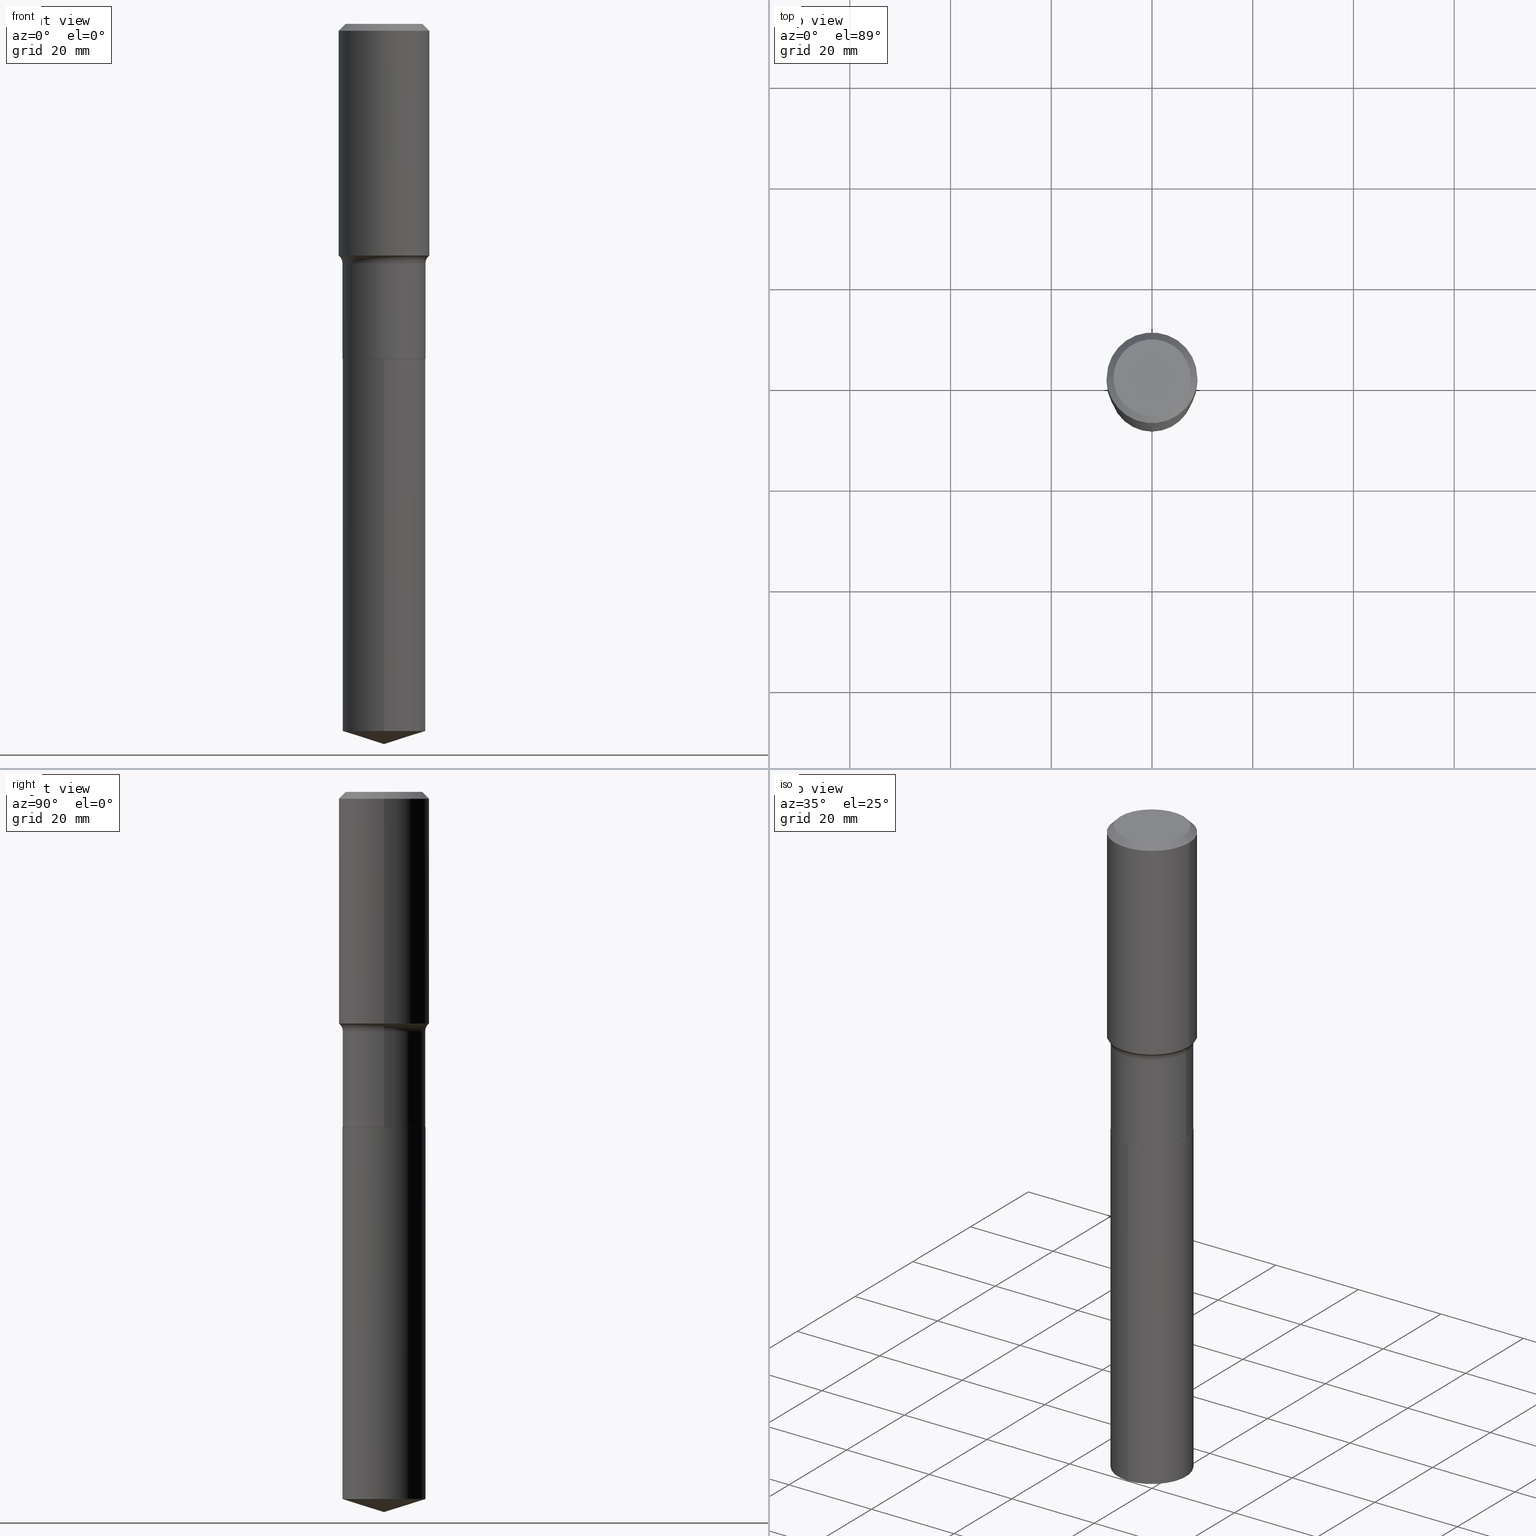
[diagram: canonical four-view strip — front | top / right | iso, engineering-drawing reading convention]
A machine part, canonical four-view strip (front | top / right | iso — engineering-drawing reading convention). The complete STEP part file that produces these views, byte-faithful:
ISO-10303-21;
HEADER;
FILE_DESCRIPTION (( 'STEP AP203' ),
    '1' );
FILE_NAME ('64205.STEP',
    '2024-04-19T15:36:36',
    ( '' ),
    ( '' ),
    'SwSTEP 2.0',
    'SolidWorks 2023',
    '' );
FILE_SCHEMA (( 'CONFIG_CONTROL_DESIGN' ));
ENDSEC;

DATA;
#1 = ORIENTED_EDGE ( 'NONE', *, *, #176, .T. ) ;
#2 = CYLINDRICAL_SURFACE ( 'NONE', #80, 0.3247999999999999776 ) ;
#3 = CIRCLE ( 'NONE', #343, 0.3247999999999999776 ) ;
#4 = ADVANCED_FACE ( 'NONE', ( #23 ), #302, .F. ) ;
#5 = DIRECTION ( 'NONE',  ( -2.445468806185136597E-29, 3.491481338843145583E-15, 1.000000000000000000 ) ) ;
#6 = DIMENSIONAL_EXPONENTS ( 1.000000000000000000, 0.000000000000000000, 0.000000000000000000, 0.000000000000000000, 0.000000000000000000, 0.000000000000000000, 0.000000000000000000 ) ;
#7 = EDGE_CURVE ( 'NONE', #323, #155, #291, .T. ) ;
#8 = CARTESIAN_POINT ( 'NONE',  ( -0.3543499999999999983, 2.288831862975266823E-15, -0.05315250000000039388 ) ) ;
#9 = ORIENTED_EDGE ( 'NONE', *, *, #357, .F. ) ;
#10 = CALENDAR_DATE ( 2024, 19, 4 ) ;
#11 = PRODUCT ( '64205', '64205', '', ( #402 ) ) ;
#12 = VERTEX_POINT ( 'NONE', #405 ) ;
#13 = AXIS2_PLACEMENT_3D ( 'NONE', #449, #324, #241 ) ;
#14 = CC_DESIGN_APPROVAL ( #56, ( #136 ) ) ;
#15 = DIRECTION ( 'NONE',  ( -6.982962677686265922E-15, -1.000000000000000000, 3.364344819783575691E-15 ) ) ;
#16 = DIRECTION ( 'NONE',  ( 1.000000000000000000, -6.982962677686265922E-15, 4.876176775795934672E-29 ) ) ;
#17 = VERTEX_POINT ( 'NONE', #468 ) ;
#18 = LINE ( 'NONE', #156, #93 ) ;
#19 = CARTESIAN_POINT ( 'NONE',  ( 0.000000000000000000, 0.000000000000000000, 0.000000000000000000 ) ) ;
#20 = VERTEX_POINT ( 'NONE', #84 ) ;
#21 = DIRECTION ( 'NONE',  ( -2.445569451297734298E-29, 3.491337209313541680E-15, 1.000000000000000000 ) ) ;
#22 = CIRCLE ( 'NONE', #161, 0.3247999999999999776 ) ;
#23 = FACE_OUTER_BOUND ( 'NONE', #92, .T. ) ;
#24 = CARTESIAN_POINT ( 'NONE',  ( 6.402481881473307615E-29, -9.141047293225240652E-15, -2.618100000000000094 ) ) ;
#25 = CARTESIAN_POINT ( 'NONE',  ( 0.000000000000000000, 0.000000000000000000, 0.000000000000000000 ) ) ;
#26 = EDGE_LOOP ( 'NONE', ( #346, #157, #426, #338 ) ) ;
#27 = DIRECTION ( 'NONE',  ( 1.000000000000000000, -6.982962677686266711E-15, 4.883557194083112901E-29 ) ) ;
#28 = VERTEX_POINT ( 'NONE', #228 ) ;
#29 = COORDINATED_UNIVERSAL_TIME_OFFSET ( 5, 0, .BEHIND. ) ;
#30 = CIRCLE ( 'NONE', #172, 0.3011975000000000069 ) ;
#31 = CARTESIAN_POINT ( 'NONE',  ( -2.268066277712363794E-15, -0.3248000000000192955, -5.527490953372105054 ) ) ;
#32 = ORIENTED_EDGE ( 'NONE', *, *, #49, .F. ) ;
#33 = FACE_OUTER_BOUND ( 'NONE', #411, .T. ) ;
#34 = CARTESIAN_POINT ( 'NONE',  ( -0.3543500000000002759, -3.801676273909247311E-15, -1.809972285336354902 ) ) ;
#35 = CONICAL_SURFACE ( 'NONE', #401, 124.8659371009137260, 1.265363707695888573 ) ;
#36 = DIRECTION ( 'NONE',  ( 2.438088387897960049E-29, -3.491481338843145188E-15, -1.000000000000000000 ) ) ;
#37 = VECTOR ( 'NONE', #116, 39.37007874015748854 ) ;
#38 = CC_DESIGN_SECURITY_CLASSIFICATION ( #451, ( #195 ) ) ;
#39 = CARTESIAN_POINT ( 'NONE',  ( 6.402481881473305372E-29, -9.141047293225237496E-15, -2.618099999999999650 ) ) ;
#40 = CARTESIAN_POINT ( 'NONE',  ( -0.3543500000000001648, 2.517808184165916180E-15, -1.743024649231826627E-29 ) ) ;
#41 = DIRECTION ( 'NONE',  ( -2.445569451297734017E-29, 3.491337209313541680E-15, 1.000000000000000000 ) ) ;
#42 = AXIS2_PLACEMENT_3D ( 'NONE', #410, #207, #174 ) ;
#43 = ADVANCED_FACE ( 'NONE', ( #83 ), #232, .T. ) ;
#44 = CARTESIAN_POINT ( 'NONE',  ( 2.307842805748940929E-15, 0.3247999999999908183, -2.618100000000001426 ) ) ;
#45 = MANIFOLD_SOLID_BREP ( 'Body-Move/Copy2[1]', #342 ) ;
#46 = CARTESIAN_POINT ( 'NONE',  ( 6.402481881473305372E-29, -9.141047293225237496E-15, -2.618099999999999650 ) ) ;
#47 = EDGE_CURVE ( 'NONE', #17, #20, #431, .T. ) ;
#48 = DIRECTION ( 'NONE',  ( -6.982962677686265922E-15, -1.000000000000000000, 3.364344819783575691E-15 ) ) ;
#49 = EDGE_CURVE ( 'NONE', #155, #323, #325, .T. ) ;
#50 = DIRECTION ( 'NONE',  ( 1.000000000000000000, -6.982962677686266711E-15, 4.883557194083112901E-29 ) ) ;
#51 = AXIS2_PLACEMENT_3D ( 'NONE', #271, #472, #353 ) ;
#52 = VECTOR ( 'NONE', #262, 39.37007874015748143 ) ;
#53 = CARTESIAN_POINT ( 'NONE',  ( 0.000000000000000000, 0.000000000000000000, 0.000000000000000000 ) ) ;
#54 = ORIENTED_EDGE ( 'NONE', *, *, #485, .F. ) ;
#55 = DIRECTION ( 'NONE',  ( -2.445468806185136597E-29, 3.491481338843145583E-15, 1.000000000000000000 ) ) ;
#56 = APPROVAL ( #198, 'UNSPECIFIED' ) ;
#57 = DIRECTION ( 'NONE',  ( 1.000000000000000000, 0.000000000000000000, 0.000000000000000000 ) ) ;
#58 = CARTESIAN_POINT ( 'NONE',  ( 0.3247999999999999221, -8.800977010821908091E-15, -1.871100000000000207 ) ) ;
#59 = AXIS2_PLACEMENT_3D ( 'NONE', #25, #360, #281 ) ;
#60 =( GEOMETRIC_REPRESENTATION_CONTEXT ( 3 ) GLOBAL_UNCERTAINTY_ASSIGNED_CONTEXT ( ( #318 ) ) GLOBAL_UNIT_ASSIGNED_CONTEXT ( ( #349, #88, #355 ) ) REPRESENTATION_CONTEXT ( 'NONE', 'WORKASPACE' ) );
#61 = ORIENTED_EDGE ( 'NONE', *, *, #269, .F. ) ;
#62 = DATE_TIME_ROLE ( 'classification_date' ) ;
#63 = CARTESIAN_POINT ( 'NONE',  ( 0.3543500000000001648, -2.474412824838129483E-15, 1.727873240503290590E-29 ) ) ;
#64 = APPLICATION_CONTEXT ( 'configuration controlled 3d designs of mechanical parts and assemblies' ) ;
#65 = LINE ( 'NONE', #70, #127 ) ;
#66 = ORIENTED_EDGE ( 'NONE', *, *, #331, .F. ) ;
#67 = CARTESIAN_POINT ( 'NONE',  ( 0.3543499999999999983, -2.659993786700990565E-15, -0.05315250000000039388 ) ) ;
#68 = LINE ( 'NONE', #332, #249 ) ;
#69 = EDGE_CURVE ( 'NONE', #101, #20, #186, .T. ) ;
#70 = CARTESIAN_POINT ( 'NONE',  ( 0.3543499999999999983, -2.616598427373204262E-15, -0.05315250000000039388 ) ) ;
#71 = EDGE_LOOP ( 'NONE', ( #268, #250, #166, #134 ) ) ;
#72 = AXIS2_PLACEMENT_3D ( 'NONE', #327, #213, #418 ) ;
#73 = DIRECTION ( 'NONE',  ( -2.445468806185136597E-29, 3.491481338843145583E-15, 1.000000000000000000 ) ) ;
#74 = AXIS2_PLACEMENT_3D ( 'NONE', #229, #470, #48 ) ;
#75 = DIRECTION ( 'NONE',  ( -2.445468806185136597E-29, 3.491481338843145583E-15, 1.000000000000000000 ) ) ;
#76 = ORIENTED_EDGE ( 'NONE', *, *, #253, .T. ) ;
#77 = LINE ( 'NONE', #8, #147 ) ;
#78 = EDGE_CURVE ( 'NONE', #479, #155, #18, .T. ) ;
#79 = DIRECTION ( 'NONE',  ( 7.105427357601001859E-15, 1.000000000000000000, -3.491481338843145583E-15 ) ) ;
#80 = AXIS2_PLACEMENT_3D ( 'NONE', #459, #491, #261 ) ;
#81 = PLANE ( 'NONE',  #384 ) ;
#82 = APPROVAL_ROLE ( '' ) ;
#83 = FACE_OUTER_BOUND ( 'NONE', #208, .T. ) ;
#84 = CARTESIAN_POINT ( 'NONE',  ( -0.3247999999999999221, -5.528263337083809819E-15, -1.871100000000000207 ) ) ;
#85 = AXIS2_PLACEMENT_3D ( 'NONE', #153, #162, #50 ) ;
#86 = APPLICATION_CONTEXT ( 'configuration controlled 3d designs of mechanical parts and assemblies' ) ;
#87 = CYLINDRICAL_SURFACE ( 'NONE', #420, 0.3247999999999999776 ) ;
#88 =( NAMED_UNIT ( * ) PLANE_ANGLE_UNIT ( ) SI_UNIT ( $, .RADIAN. ) );
#89 = ORIENTED_EDGE ( 'NONE', *, *, #266, .T. ) ;
#90 = ORIENTED_EDGE ( 'NONE', *, *, #322, .F. ) ;
#91 = CARTESIAN_POINT ( 'NONE',  ( 1.299827807207564373E-30, -1.855809618628616735E-16, -0.05315250000000039388 ) ) ;
#92 = EDGE_LOOP ( 'NONE', ( #61, #317, #119, #363 ) ) ;
#93 = VECTOR ( 'NONE', #167, 39.37007874015748854 ) ;
#94 = CC_DESIGN_PERSON_AND_ORGANIZATION_ASSIGNMENT ( #432, #233, ( #11 ) ) ;
#95 = CIRCLE ( 'NONE', #326, 0.07800000000000002764 ) ;
#96 = ADVANCED_FACE ( 'NONE', ( #320 ), #140, .T. ) ;
#97 = PERSON_AND_ORGANIZATION_ROLE ( 'classification_officer' ) ;
#98 = DIRECTION ( 'NONE',  ( -2.445468806185136597E-29, 3.491481338843145583E-15, 1.000000000000000000 ) ) ;
#99 = ADVANCED_FACE ( 'NONE', ( #435 ), #87, .T. ) ;
#100 = DIRECTION ( 'NONE',  ( 1.000000000000000000, -6.982962677686265922E-15, 4.876176775795935793E-29 ) ) ;
#101 = VERTEX_POINT ( 'NONE', #58 ) ;
#102 = PERSON_AND_ORGANIZATION ( #259, #151 ) ;
#103 = FACE_OUTER_BOUND ( 'NONE', #171, .T. ) ;
#104 = ORIENTED_EDGE ( 'NONE', *, *, #218, .F. ) ;
#105 = CONICAL_SURFACE ( 'NONE', #13, 124.8659371009137260, 1.265363707695888573 ) ;
#106 = CIRCLE ( 'NONE', #469, 0.3011975000000000069 ) ;
#107 = PERSON_AND_ORGANIZATION ( #259, #151 ) ;
#108 = PLANE ( 'NONE',  #393 ) ;
#109 = LINE ( 'NONE', #63, #231 ) ;
#110 = DIRECTION ( 'NONE',  ( -2.445468806185136877E-29, 3.491481338843145188E-15, 1.000000000000000000 ) ) ;
#111 = ORIENTED_EDGE ( 'NONE', *, *, #176, .F. ) ;
#112 = ADVANCED_FACE ( 'NONE', ( #165 ), #475, .F. ) ;
#113 = CARTESIAN_POINT ( 'NONE',  ( 0.3247999999999999776, -1.140736783026831626E-14, -2.617599999999999927 ) ) ;
#114 = VECTOR ( 'NONE', #223, 39.37007874015748143 ) ;
#115 = LOCAL_TIME ( 11, 36, 36.00000000000000000, #412 ) ;
#116 = DIRECTION ( 'NONE',  ( 6.776566513254251038E-15, 0.9537169507482278208, 0.3007057995042701215 ) ) ;
#117 = FACE_OUTER_BOUND ( 'NONE', #138, .T. ) ;
#118 = ORIENTED_EDGE ( 'NONE', *, *, #7, .F. ) ;
#119 = ORIENTED_EDGE ( 'NONE', *, *, #202, .T. ) ;
#120 = LINE ( 'NONE', #428, #456 ) ;
#121 = VECTOR ( 'NONE', #41, 39.37007874015748143 ) ;
#122 = ORIENTED_EDGE ( 'NONE', *, *, #446, .F. ) ;
#123 = DIRECTION ( 'NONE',  ( -2.445569451297734298E-29, 3.491337209313541680E-15, 1.000000000000000000 ) ) ;
#124 = ORIENTED_EDGE ( 'NONE', *, *, #331, .T. ) ;
#125 = COORDINATED_UNIVERSAL_TIME_OFFSET ( 5, 0, .BEHIND. ) ;
#126 = ORIENTED_EDGE ( 'NONE', *, *, #476, .F. ) ;
#127 = VECTOR ( 'NONE', #137, 39.37007874015748143 ) ;
#128 = CARTESIAN_POINT ( 'NONE',  ( 6.402481881473307615E-29, -9.141047293225240652E-15, -2.618100000000000094 ) ) ;
#129 = VERTEX_POINT ( 'NONE', #34 ) ;
#130 = ORIENTED_EDGE ( 'NONE', *, *, #184, .F. ) ;
#131 = CARTESIAN_POINT ( 'NONE',  ( 9.482586933337312593E-29, -4.730161550263533233E-15, -2.618100000000000094 ) ) ;
#132 = EDGE_CURVE ( 'NONE', #155, #12, #68, .T. ) ;
#133 = APPROVAL_ROLE ( '' ) ;
#134 = ORIENTED_EDGE ( 'NONE', *, *, #354, .F. ) ;
#135 = DIRECTION ( 'NONE',  ( 1.000000000000000000, -6.982962677686255667E-15, 0.000000000000000000 ) ) ;
#136 = PRODUCT_DEFINITION ( 'UNKNOWN', '', #195, #385 ) ;
#137 = DIRECTION ( 'NONE',  ( 0.7071067811865449082, -7.319954787623246579E-15, -0.7071067811865501263 ) ) ;
#138 = EDGE_LOOP ( 'NONE', ( #283, #244 ) ) ;
#139 = DIRECTION ( 'NONE',  ( -2.445468806185136597E-29, 3.491481338843145583E-15, 1.000000000000000000 ) ) ;
#140 = CONICAL_SURFACE ( 'NONE', #368, 0.3543499999999999983, 0.7853981633974446153 ) ;
#141 = AXIS2_PLACEMENT_3D ( 'NONE', #149, #224, #296 ) ;
#142 = CARTESIAN_POINT ( 'NONE',  ( 0.000000000000000000, 0.000000000000000000, 0.000000000000000000 ) ) ;
#143 = CARTESIAN_POINT ( 'NONE',  ( 2.307842805748868748E-15, 0.3247999999999908183, -2.618100000000001426 ) ) ;
#144 = DIRECTION ( 'NONE',  ( -2.445468806185136597E-29, 3.491481338843145583E-15, 1.000000000000000000 ) ) ;
#145 = CONICAL_SURFACE ( 'NONE', #209, 0.3543499999999999983, 0.7853981633974446153 ) ;
#146 = DIRECTION ( 'NONE',  ( 1.000000000000000000, -6.982962677686265922E-15, 0.000000000000000000 ) ) ;
#147 = VECTOR ( 'NONE', #460, 39.37007874015748143 ) ;
#148 = FACE_OUTER_BOUND ( 'NONE', #464, .T. ) ;
#149 = CARTESIAN_POINT ( 'NONE',  ( 1.299827807207564373E-30, -1.855809618628616735E-16, -0.05315250000000039388 ) ) ;
#150 = ADVANCED_FACE ( 'NONE', ( #215 ), #35, .T. ) ;
#151 = ORGANIZATION ( 'UNSPECIFIED', 'UNSPECIFIED', '' ) ;
#152 = ADVANCED_FACE ( 'NONE', ( #482 ), #105, .T. ) ;
#153 = CARTESIAN_POINT ( 'NONE',  ( 4.575716683253009173E-29, -6.532910733109410979E-15, -1.871100000000000207 ) ) ;
#154 = PERSON_AND_ORGANIZATION ( #259, #151 ) ;
#155 = VERTEX_POINT ( 'NONE', #31 ) ;
#156 = CARTESIAN_POINT ( 'NONE',  ( 1.376778445592252737E-28, -1.965663404575721904E-14, -5.629900000000000126 ) ) ;
#157 = ORIENTED_EDGE ( 'NONE', *, *, #322, .T. ) ;
#158 = PERSON_AND_ORGANIZATION ( #259, #151 ) ;
#159 = ORIENTED_EDGE ( 'NONE', *, *, #357, .T. ) ;
#160 = AXIS2_PLACEMENT_3D ( 'NONE', #131, #236, #100 ) ;
#161 = AXIS2_PLACEMENT_3D ( 'NONE', #185, #344, #146 ) ;
#162 = DIRECTION ( 'NONE',  ( -2.445468806185136597E-29, 3.491481338843145583E-15, 1.000000000000000000 ) ) ;
#163 = APPROVAL ( #467, 'UNSPECIFIED' ) ;
#164 = EDGE_CURVE ( 'NONE', #129, #238, #379, .T. ) ;
#165 = FACE_OUTER_BOUND ( 'NONE', #389, .T. ) ;
#166 = ORIENTED_EDGE ( 'NONE', *, *, #218, .T. ) ;
#167 = DIRECTION ( 'NONE',  ( -6.659769872151624989E-15, -0.9537169507482257114, 0.3007057995042767273 ) ) ;
#168 = SHAPE_DEFINITION_REPRESENTATION ( #392, #173 ) ;
#169 = CYLINDRICAL_SURFACE ( 'NONE', #275, 0.3543500000000001648 ) ;
#170 = ADVANCED_FACE ( 'NONE', ( #33 ), #145, .T. ) ;
#171 = EDGE_LOOP ( 'NONE', ( #471, #390 ) ) ;
#172 = AXIS2_PLACEMENT_3D ( 'NONE', #382, #144, #425 ) ;
#173 = ADVANCED_BREP_SHAPE_REPRESENTATION ( '64205', ( #45, #377, #380 ), #60 ) ;
#174 = DIRECTION ( 'NONE',  ( 1.000000000000000000, -6.982962677686266711E-15, 0.000000000000000000 ) ) ;
#175 = ORIENTED_EDGE ( 'NONE', *, *, #132, .T. ) ;
#176 = EDGE_CURVE ( 'NONE', #238, #252, #109, .T. ) ;
#177 = APPROVAL_DATE_TIME ( #247, #163 ) ;
#178 = CYLINDRICAL_SURFACE ( 'NONE', #413, 0.3543500000000001648 ) ;
#179 = AXIS2_PLACEMENT_3D ( 'NONE', #39, #388, #492 ) ;
#180 = ADVANCED_FACE ( 'NONE', ( #486 ), #169, .T. ) ;
#181 = FACE_OUTER_BOUND ( 'NONE', #276, .T. ) ;
#182 = ADVANCED_FACE ( 'NONE', ( #447 ), #178, .T. ) ;
#183 = DIRECTION ( 'NONE',  ( 6.982962677686265922E-15, 1.000000000000000000, -3.491337209313541680E-15 ) ) ;
#184 = EDGE_CURVE ( 'NONE', #448, #252, #65, .T. ) ;
#185 = CARTESIAN_POINT ( 'NONE',  ( 6.401259147070212571E-29, -9.139301552555818359E-15, -2.617599999999999927 ) ) ;
#186 = CIRCLE ( 'NONE', #216, 0.3247999999999999221 ) ;
#187 = TOROIDAL_SURFACE ( 'NONE', #427, 0.4027999999999998804, 0.07800000000000001377 ) ;
#188 = CARTESIAN_POINT ( 'NONE',  ( 4.426230763849679048E-29, -6.319484458075164280E-15, -1.809972285336354902 ) ) ;
#189 = AXIS2_PLACEMENT_3D ( 'NONE', #188, #5, #299 ) ;
#190 = LINE ( 'NONE', #345, #37 ) ;
#191 = COORDINATED_UNIVERSAL_TIME_OFFSET ( 5, 0, .BEHIND. ) ;
#192 = EDGE_LOOP ( 'NONE', ( #9, #230, #175, #54 ) ) ;
#193 = CYLINDRICAL_SURFACE ( 'NONE', #264, 0.3247999999999999221 ) ;
#194 = CARTESIAN_POINT ( 'NONE',  ( 4.575716683253009173E-29, -6.532910733109410979E-15, -1.871100000000000207 ) ) ;
#195 = PRODUCT_DEFINITION_FORMATION_WITH_SPECIFIED_SOURCE ( 'ANY', '', #11, .NOT_KNOWN. ) ;
#196 = ORIENTED_EDGE ( 'NONE', *, *, #476, .T. ) ;
#197 = DIRECTION ( 'NONE',  ( -2.445468806185136597E-29, 3.491481338843145583E-15, 1.000000000000000000 ) ) ;
#198 = APPROVAL_STATUS ( 'not_yet_approved' ) ;
#199 = ORIENTED_EDGE ( 'NONE', *, *, #132, .F. ) ;
#200 = AXIS2_PLACEMENT_3D ( 'NONE', #46, #73, #335 ) ;
#201 = CC_DESIGN_APPROVAL ( #374, ( #451 ) ) ;
#202 = EDGE_CURVE ( 'NONE', #238, #101, #95, .T. ) ;
#203 = DIRECTION ( 'NONE',  ( -6.982962677686265922E-15, -1.000000000000000000, 3.364344819783575691E-15 ) ) ;
#204 = ORIENTED_EDGE ( 'NONE', *, *, #465, .F. ) ;
#205 = CALENDAR_DATE ( 2024, 19, 4 ) ;
#206 = CARTESIAN_POINT ( 'NONE',  ( 6.402481881473305372E-29, -9.141047293225237496E-15, -2.618099999999999650 ) ) ;
#207 = DIRECTION ( 'NONE',  ( -2.445468806185136597E-29, 3.491481338843145583E-15, 1.000000000000000000 ) ) ;
#208 = EDGE_LOOP ( 'NONE', ( #76, #406, #483, #225 ) ) ;
#209 = AXIS2_PLACEMENT_3D ( 'NONE', #365, #452, #378 ) ;
#210 = AXIS2_PLACEMENT_3D ( 'NONE', #454, #419, #423 ) ;
#211 = CARTESIAN_POINT ( 'NONE',  ( 0.000000000000000000, 0.000000000000000000, 0.000000000000000000 ) ) ;
#212 = ADVANCED_FACE ( 'NONE', ( #181 ), #187, .F. ) ;
#213 = DIRECTION ( 'NONE',  ( -2.445468806185136597E-29, 3.491481338843145583E-15, 1.000000000000000000 ) ) ;
#214 = ADVANCED_FACE ( 'NONE', ( #286 ), #292, .T. ) ;
#215 = FACE_OUTER_BOUND ( 'NONE', #356, .T. ) ;
#216 = AXIS2_PLACEMENT_3D ( 'NONE', #194, #55, #439 ) ;
#217 = LOCAL_TIME ( 11, 36, 36.00000000000000000, #473 ) ;
#218 = EDGE_CURVE ( 'NONE', #252, #458, #285, .T. ) ;
#219 = LINE ( 'NONE', #40, #52 ) ;
#220 = CARTESIAN_POINT ( 'NONE',  ( -0.4027999999999998804, -3.670844593467727886E-15, -1.871100000000000207 ) ) ;
#221 = LINE ( 'NONE', #143, #121 ) ;
#222 = CONICAL_SURFACE ( 'NONE', #179, 0.3243000000000000327, 0.7853981633977896726 ) ;
#223 = DIRECTION ( 'NONE',  ( 0.7071067811867889352, -2.468850131084785360E-15, 0.7071067811863060992 ) ) ;
#224 = DIRECTION ( 'NONE',  ( -2.445468806185136597E-29, 3.491481338843145583E-15, 1.000000000000000000 ) ) ;
#225 = ORIENTED_EDGE ( 'NONE', *, *, #437, .F. ) ;
#226 = PERSON_AND_ORGANIZATION ( #259, #151 ) ;
#227 = EDGE_CURVE ( 'NONE', #448, #306, #106, .T. ) ;
#228 = CARTESIAN_POINT ( 'NONE',  ( -0.3243000000000000327, -6.834107973981121949E-15, -2.618099999999999650 ) ) ;
#229 = CARTESIAN_POINT ( 'NONE',  ( 6.402481881473307615E-29, -9.141047293225240652E-15, -2.618100000000000094 ) ) ;
#230 = ORIENTED_EDGE ( 'NONE', *, *, #7, .T. ) ;
#231 = VECTOR ( 'NONE', #481, 39.37007874015748143 ) ;
#232 = CYLINDRICAL_SURFACE ( 'NONE', #59, 0.3247999999999999221 ) ;
#233 = PERSON_AND_ORGANIZATION_ROLE ( 'design_owner' ) ;
#234 = ORIENTED_EDGE ( 'NONE', *, *, #354, .T. ) ;
#235 = CALENDAR_DATE ( 2024, 19, 4 ) ;
#236 = DIRECTION ( 'NONE',  ( -2.438088387897960049E-29, 3.491481338843145188E-15, 1.000000000000000000 ) ) ;
#237 = AXIS2_PLACEMENT_3D ( 'NONE', #397, #274, #394 ) ;
#238 = VERTEX_POINT ( 'NONE', #330 ) ;
#239 = ADVANCED_FACE ( 'NONE', ( #103 ), #108, .F. ) ;
#240 = CALENDAR_DATE ( 2024, 19, 4 ) ;
#241 = DIRECTION ( 'NONE',  ( -6.982962677686265133E-15, -1.000000000000000000, 3.500519750498741903E-15 ) ) ;
#242 = ORIENTED_EDGE ( 'NONE', *, *, #49, .T. ) ;
#243 = PRODUCT_RELATED_PRODUCT_CATEGORY ( 'detail', '', ( #11 ) ) ;
#244 = ORIENTED_EDGE ( 'NONE', *, *, #485, .T. ) ;
#245 = CARTESIAN_POINT ( 'NONE',  ( 0.4027999999999998804, -9.345648099681439292E-15, -1.871100000000000207 ) ) ;
#246 = ORIENTED_EDGE ( 'NONE', *, *, #164, .T. ) ;
#247 = DATE_AND_TIME ( #270, #415 ) ;
#248 = CARTESIAN_POINT ( 'NONE',  ( -5.014852121625167883E-47, 7.159879756154481060E-33, 2.050671065172242981E-18 ) ) ;
#249 = VECTOR ( 'NONE', #488, 39.37007874015748143 ) ;
#250 = ORIENTED_EDGE ( 'NONE', *, *, #184, .T. ) ;
#251 = DIRECTION ( 'NONE',  ( -2.445468806185136597E-29, 3.491481338843145583E-15, 1.000000000000000000 ) ) ;
#252 = VERTEX_POINT ( 'NONE', #67 ) ;
#253 = EDGE_CURVE ( 'NONE', #272, #17, #3, .T. ) ;
#254 = DIRECTION ( 'NONE',  ( -2.445468806185136597E-29, 3.491481338843145583E-15, 1.000000000000000000 ) ) ;
#255 = ADVANCED_FACE ( 'NONE', ( #117 ), #81, .F. ) ;
#256 = DIRECTION ( 'NONE',  ( -1.000000000000000000, 7.105427357601001859E-15, 0.000000000000000000 ) ) ;
#257 = AXIS2_PLACEMENT_3D ( 'NONE', #206, #98, #444 ) ;
#258 = FACE_OUTER_BOUND ( 'NONE', #305, .T. ) ;
#259 = PERSON ( 'UNSPECIFIED', 'UNSPECIFIED', 'UNSPECIFIED', ('UNSPECIFIED'), ('UNSPECIFIED'), ('UNSPECIFIED') ) ;
#260 = CC_DESIGN_DATE_AND_TIME_ASSIGNMENT ( #407, #62, ( #451 ) ) ;
#261 = DIRECTION ( 'NONE',  ( -6.982962677686265922E-15, -1.000000000000000000, 3.364344819783575691E-15 ) ) ;
#262 = DIRECTION ( 'NONE',  ( -2.445468806185136877E-29, 3.491481338843145188E-15, 1.000000000000000000 ) ) ;
#263 = EDGE_CURVE ( 'NONE', #306, #448, #30, .T. ) ;
#264 = AXIS2_PLACEMENT_3D ( 'NONE', #53, #197, #16 ) ;
#265 = CARTESIAN_POINT ( 'NONE',  ( 6.402481881473307615E-29, -9.141047293225240652E-15, -2.618100000000000094 ) ) ;
#266 = EDGE_CURVE ( 'NONE', #129, #458, #219, .T. ) ;
#267 = DATE_AND_TIME ( #10, #421 ) ;
#268 = ORIENTED_EDGE ( 'NONE', *, *, #227, .F. ) ;
#269 = EDGE_CURVE ( 'NONE', #129, #20, #462, .T. ) ;
#270 = CALENDAR_DATE ( 2024, 19, 4 ) ;
#271 = CARTESIAN_POINT ( 'NONE',  ( 1.351759951892211871E-28, -1.929871218517347483E-14, -5.527490953372105942 ) ) ;
#272 = VERTEX_POINT ( 'NONE', #113 ) ;
#273 = CC_DESIGN_PERSON_AND_ORGANIZATION_ASSIGNMENT ( #102, #484, ( #195 ) ) ;
#274 = DIRECTION ( 'NONE',  ( -2.445468806185136597E-29, 3.491481338843145583E-15, 1.000000000000000000 ) ) ;
#275 = AXIS2_PLACEMENT_3D ( 'NONE', #211, #254, #376 ) ;
#276 = EDGE_LOOP ( 'NONE', ( #315, #373, #196, #445 ) ) ;
#277 = DIRECTION ( 'NONE',  ( 2.445468806185136597E-29, -3.491481338843145583E-15, -1.000000000000000000 ) ) ;
#278 = CIRCLE ( 'NONE', #200, 0.3243000000000000327 ) ;
#279 = APPROVAL_PERSON_ORGANIZATION ( #107, #374, #133 ) ;
#280 =( LENGTH_UNIT ( ) NAMED_UNIT ( * ) SI_UNIT ( $, .METRE. ) );
#281 = DIRECTION ( 'NONE',  ( 1.000000000000000000, -6.982962677686265922E-15, 4.876176775795934672E-29 ) ) ;
#282 = PERSON_AND_ORGANIZATION_ROLE ( 'creator' ) ;
#283 = ORIENTED_EDGE ( 'NONE', *, *, #465, .T. ) ;
#284 = DIRECTION ( 'NONE',  ( -2.445569451297734298E-29, 3.491337209313541680E-15, 1.000000000000000000 ) ) ;
#285 = CIRCLE ( 'NONE', #42, 0.3543499999999999983 ) ;
#286 = FACE_OUTER_BOUND ( 'NONE', #26, .T. ) ;
#287 = APPROVAL_DATE_TIME ( #293, #374 ) ;
#288 = DIRECTION ( 'NONE',  ( 1.000000000000000000, -6.982962677686266711E-15, 4.876239486148337140E-29 ) ) ;
#289 = VERTEX_POINT ( 'NONE', #298 ) ;
#290 = DIRECTION ( 'NONE',  ( -2.445468806185136597E-29, 3.491481338843145583E-15, 1.000000000000000000 ) ) ;
#291 = CIRCLE ( 'NONE', #51, 0.3247999999999999776 ) ;
#292 = CONICAL_SURFACE ( 'NONE', #257, 0.3243000000000000327, 0.7853981633977896726 ) ;
#293 = DATE_AND_TIME ( #205, #115 ) ;
#294 = CARTESIAN_POINT ( 'NONE',  ( -8.251421390722369566E-28, 1.177979641388800614E-13, 33.74017874015748220 ) ) ;
#295 = CARTESIAN_POINT ( 'NONE',  ( 0.3011975000000000069, -2.341481636528497322E-15, 4.101342130360026675E-18 ) ) ;
#296 = DIRECTION ( 'NONE',  ( 1.000000000000000000, -6.982962677686266711E-15, 0.000000000000000000 ) ) ;
#297 = EDGE_CURVE ( 'NONE', #17, #272, #22, .T. ) ;
#298 = CARTESIAN_POINT ( 'NONE',  ( 0.3243000000000000327, -1.140562208959889397E-14, -2.618099999999999650 ) ) ;
#299 = DIRECTION ( 'NONE',  ( 1.000000000000000000, -6.982962677686266711E-15, 0.000000000000000000 ) ) ;
#300 = ORIENTED_EDGE ( 'NONE', *, *, #311, .T. ) ;
#301 = DIRECTION ( 'NONE',  ( 2.445569451297734017E-29, -3.491337209313541680E-15, -1.000000000000000000 ) ) ;
#302 = TOROIDAL_SURFACE ( 'NONE', #85, 0.4027999999999998804, 0.07800000000000001377 ) ;
#303 = CARTESIAN_POINT ( 'NONE',  ( -0.3543499999999999983, -7.347245258030969939E-16, -0.05315250000000039388 ) ) ;
#304 = CC_DESIGN_APPROVAL ( #163, ( #195 ) ) ;
#305 = EDGE_LOOP ( 'NONE', ( #90, #403, #300, #366 ) ) ;
#306 = VERTEX_POINT ( 'NONE', #336 ) ;
#307 = APPROVAL_ROLE ( '' ) ;
#308 = DIRECTION ( 'NONE',  ( -1.000000000000000000, 6.982962677686266711E-15, 0.000000000000000000 ) ) ;
#309 = VECTOR ( 'NONE', #395, 39.37007874015748143 ) ;
#310 = DATE_AND_TIME ( #235, #217 ) ;
#311 = EDGE_CURVE ( 'NONE', #289, #272, #381, .T. ) ;
#312 = AXIS2_PLACEMENT_3D ( 'NONE', #220, #79, #256 ) ;
#313 = VERTEX_POINT ( 'NONE', #44 ) ;
#314 = CARTESIAN_POINT ( 'NONE',  ( 1.376831145386111080E-28, -1.965587935471430883E-14, -5.629900000000000126 ) ) ;
#315 = ORIENTED_EDGE ( 'NONE', *, *, #164, .F. ) ;
#316 = CARTESIAN_POINT ( 'NONE',  ( 1.351759951892211871E-28, -1.929871218517347483E-14, -5.527490953372105942 ) ) ;
#317 = ORIENTED_EDGE ( 'NONE', *, *, #416, .F. ) ;
#318 = UNCERTAINTY_MEASURE_WITH_UNIT (LENGTH_MEASURE( 1.000000000000000082E-05 ), #349, 'distance_accuracy_value', 'NONE');
#319 = ORIENTED_EDGE ( 'NONE', *, *, #78, .T. ) ;
#320 = FACE_OUTER_BOUND ( 'NONE', #71, .T. ) ;
#321 = CC_DESIGN_PERSON_AND_ORGANIZATION_ASSIGNMENT ( #375, #477, ( #195 ) ) ;
#322 = EDGE_CURVE ( 'NONE', #28, #17, #383, .T. ) ;
#323 = VERTEX_POINT ( 'NONE', #424 ) ;
#324 = DIRECTION ( 'NONE',  ( -2.445569451297734298E-29, 3.491337209313541680E-15, 1.000000000000000000 ) ) ;
#325 = CIRCLE ( 'NONE', #341, 0.3247999999999999776 ) ;
#326 = AXIS2_PLACEMENT_3D ( 'NONE', #245, #417, #135 ) ;
#327 = CARTESIAN_POINT ( 'NONE',  ( 4.426230763849679048E-29, -6.319484458075164280E-15, -1.809972285336354902 ) ) ;
#328 = ORIENTED_EDGE ( 'NONE', *, *, #78, .F. ) ;
#329 = SECURITY_CLASSIFICATION_LEVEL ( 'unclassified' ) ;
#330 = CARTESIAN_POINT ( 'NONE',  ( 0.3543500000000002759, -8.793897282913294946E-15, -1.809972285336354902 ) ) ;
#331 = EDGE_CURVE ( 'NONE', #479, #323, #190, .T. ) ;
#332 = CARTESIAN_POINT ( 'NONE',  ( -2.268066277712435186E-15, -0.3248000000000091370, -2.618099999999999206 ) ) ;
#333 = CIRCLE ( 'NONE', #348, 0.3247999999999999776 ) ;
#334 = LOCAL_TIME ( 11, 36, 36.00000000000000000, #29 ) ;
#335 = DIRECTION ( 'NONE',  ( 1.000000000000000000, -6.982962677686266711E-15, 0.000000000000000000 ) ) ;
#336 = CARTESIAN_POINT ( 'NONE',  ( -0.3011975000000000069, 2.196041382043837860E-15, 4.101342130329452923E-18 ) ) ;
#337 = ADVANCED_FACE ( 'NONE', ( #148 ), #2, .T. ) ;
#338 = ORIENTED_EDGE ( 'NONE', *, *, #311, .F. ) ;
#339 = CARTESIAN_POINT ( 'NONE',  ( 0.3243000000000000327, -1.140562208959889397E-14, -2.618099999999999650 ) ) ;
#340 = EDGE_LOOP ( 'NONE', ( #461, #246, #1, #429 ) ) ;
#341 = AXIS2_PLACEMENT_3D ( 'NONE', #316, #362, #203 ) ;
#342 = CLOSED_SHELL ( 'NONE', ( #337, #150, #152, #99, #255 ) ) ;
#343 = AXIS2_PLACEMENT_3D ( 'NONE', #372, #75, #455 ) ;
#344 = DIRECTION ( 'NONE',  ( -2.445468806185136597E-29, 3.491481338843145583E-15, 1.000000000000000000 ) ) ;
#345 = CARTESIAN_POINT ( 'NONE',  ( 1.376831607501096174E-28, -1.965587935471430883E-14, -5.629900000000000126 ) ) ;
#346 = ORIENTED_EDGE ( 'NONE', *, *, #453, .T. ) ;
#347 = APPLICATION_PROTOCOL_DEFINITION ( 'international standard', 'config_control_design', 1994, #86 ) ;
#348 = AXIS2_PLACEMENT_3D ( 'NONE', #128, #123, #15 ) ;
#349 =( CONVERSION_BASED_UNIT ( 'INCH', #351 ) LENGTH_UNIT ( ) NAMED_UNIT ( #6 ) );
#350 = ORIENTED_EDGE ( 'NONE', *, *, #437, .T. ) ;
#351 = LENGTH_MEASURE_WITH_UNIT ( LENGTH_MEASURE( 0.02539999999999999897 ), #280 );
#352 = ORIENTED_EDGE ( 'NONE', *, *, #263, .F. ) ;
#353 = DIRECTION ( 'NONE',  ( -6.982962677686265922E-15, -1.000000000000000000, 3.364344819783575691E-15 ) ) ;
#354 = EDGE_CURVE ( 'NONE', #306, #458, #77, .T. ) ;
#355 =( NAMED_UNIT ( * ) SI_UNIT ( $, .STERADIAN. ) SOLID_ANGLE_UNIT ( ) );
#356 = EDGE_LOOP ( 'NONE', ( #328, #124, #32 ) ) ;
#357 = EDGE_CURVE ( 'NONE', #323, #313, #221, .T. ) ;
#358 = APPROVAL_DATE_TIME ( #310, #56 ) ;
#359 = CIRCLE ( 'NONE', #141, 0.3543499999999999983 ) ;
#360 = DIRECTION ( 'NONE',  ( -2.445468806185136597E-29, 3.491481338843145583E-15, 1.000000000000000000 ) ) ;
#361 = EDGE_LOOP ( 'NONE', ( #409, #440, #350, #126 ) ) ;
#362 = DIRECTION ( 'NONE',  ( -2.445569451297734298E-29, 3.491337209313541680E-15, 1.000000000000000000 ) ) ;
#363 = ORIENTED_EDGE ( 'NONE', *, *, #69, .T. ) ;
#364 = APPROVAL_STATUS ( 'not_yet_approved' ) ;
#365 = CARTESIAN_POINT ( 'NONE',  ( 1.299827807207564373E-30, -1.855809618628616735E-16, -0.05315250000000039388 ) ) ;
#366 = ORIENTED_EDGE ( 'NONE', *, *, #297, .F. ) ;
#367 = CARTESIAN_POINT ( 'NONE',  ( -1.002970424325033577E-46, 1.431975951230896212E-32, 4.101342130344485961E-18 ) ) ;
#368 = AXIS2_PLACEMENT_3D ( 'NONE', #91, #277, #308 ) ;
#369 = CIRCLE ( 'NONE', #74, 0.3247999999999999776 ) ;
#370 = CC_DESIGN_DATE_AND_TIME_ASSIGNMENT ( #267, #430, ( #136 ) ) ;
#371 = EDGE_LOOP ( 'NONE', ( #66, #319, #118 ) ) ;
#372 = CARTESIAN_POINT ( 'NONE',  ( 6.401259147070212571E-29, -9.139301552555818359E-15, -2.617599999999999927 ) ) ;
#373 = ORIENTED_EDGE ( 'NONE', *, *, #269, .T. ) ;
#374 = APPROVAL ( #364, 'UNSPECIFIED' ) ;
#375 = PERSON_AND_ORGANIZATION ( #259, #151 ) ;
#376 = DIRECTION ( 'NONE',  ( 1.000000000000000000, -6.982962677686265922E-15, 4.876176775795935793E-29 ) ) ;
#377 = MANIFOLD_SOLID_BREP ( 'Body-Move/Copy2[2]', #487 ) ;
#378 = DIRECTION ( 'NONE',  ( -1.000000000000000000, 6.982962677686266711E-15, 0.000000000000000000 ) ) ;
#379 = CIRCLE ( 'NONE', #72, 0.3543500000000002204 ) ;
#380 = AXIS2_PLACEMENT_3D ( 'NONE', #19, #463, #57 ) ;
#381 = LINE ( 'NONE', #339, #114 ) ;
#382 = CARTESIAN_POINT ( 'NONE',  ( -1.002970424325033577E-46, 1.431975951230896212E-32, 4.101342130344485961E-18 ) ) ;
#383 = LINE ( 'NONE', #386, #450 ) ;
#384 = AXIS2_PLACEMENT_3D ( 'NONE', #265, #301, #183 ) ;
#385 = DESIGN_CONTEXT ( 'detailed design', #86, 'design' ) ;
#386 = CARTESIAN_POINT ( 'NONE',  ( -0.3243000000000000327, -6.836757201155233150E-15, -2.618099999999999650 ) ) ;
#387 = EDGE_LOOP ( 'NONE', ( #466, #89, #104, #111 ) ) ;
#388 = DIRECTION ( 'NONE',  ( -2.445468806185136597E-29, 3.491481338843145583E-15, 1.000000000000000000 ) ) ;
#389 = EDGE_LOOP ( 'NONE', ( #399, #122 ) ) ;
#390 = ORIENTED_EDGE ( 'NONE', *, *, #227, .T. ) ;
#391 = FACE_OUTER_BOUND ( 'NONE', #361, .T. ) ;
#392 = PRODUCT_DEFINITION_SHAPE ( 'NONE', 'NONE',  #136 ) ;
#393 = AXIS2_PLACEMENT_3D ( 'NONE', #248, #36, #414 ) ;
#394 = DIRECTION ( 'NONE',  ( 1.000000000000000000, -6.982962677686265133E-15, 0.000000000000000000 ) ) ;
#395 = DIRECTION ( 'NONE',  ( -2.445468806185136877E-29, 3.491481338843145188E-15, 1.000000000000000000 ) ) ;
#396 = APPLICATION_PROTOCOL_DEFINITION ( 'international standard', 'config_control_design', 1994, #64 ) ;
#397 = CARTESIAN_POINT ( 'NONE',  ( 4.575716683253009173E-29, -6.532910733109410979E-15, -1.871100000000000207 ) ) ;
#398 = DIRECTION ( 'NONE',  ( -6.982962677686265922E-15, -1.000000000000000000, 3.364344819783575691E-15 ) ) ;
#399 = ORIENTED_EDGE ( 'NONE', *, *, #453, .F. ) ;
#400 = CC_DESIGN_PERSON_AND_ORGANIZATION_ASSIGNMENT ( #154, #282, ( #136 ) ) ;
#401 = AXIS2_PLACEMENT_3D ( 'NONE', #294, #284, #478 ) ;
#402 = MECHANICAL_CONTEXT ( 'NONE', #64, 'mechanical' ) ;
#403 = ORIENTED_EDGE ( 'NONE', *, *, #446, .T. ) ;
#404 = CIRCLE ( 'NONE', #189, 0.3543500000000002204 ) ;
#405 = CARTESIAN_POINT ( 'NONE',  ( -2.268066277712435186E-15, -0.3248000000000091370, -2.618099999999999206 ) ) ;
#406 = ORIENTED_EDGE ( 'NONE', *, *, #47, .T. ) ;
#407 = DATE_AND_TIME ( #240, #334 ) ;
#408 = DIRECTION ( 'NONE',  ( 1.000000000000000000, -6.982962677686265922E-15, 4.876176775795935793E-29 ) ) ;
#409 = ORIENTED_EDGE ( 'NONE', *, *, #47, .F. ) ;
#410 = CARTESIAN_POINT ( 'NONE',  ( 1.299827807207564373E-30, -1.855809618628616735E-16, -0.05315250000000039388 ) ) ;
#411 = EDGE_LOOP ( 'NONE', ( #130, #352, #234, #474 ) ) ;
#412 = COORDINATED_UNIVERSAL_TIME_OFFSET ( 5, 0, .BEHIND. ) ;
#413 = AXIS2_PLACEMENT_3D ( 'NONE', #142, #290, #408 ) ;
#414 = DIRECTION ( 'NONE',  ( -1.000000000000000000, 6.982962677686265922E-15, -4.876176775795935793E-29 ) ) ;
#415 = LOCAL_TIME ( 11, 36, 36.00000000000000000, #125 ) ;
#416 = EDGE_CURVE ( 'NONE', #238, #129, #404, .T. ) ;
#417 = DIRECTION ( 'NONE',  ( -6.982962677686266711E-15, -1.000000000000000000, 3.491481338843145583E-15 ) ) ;
#418 = DIRECTION ( 'NONE',  ( 1.000000000000000000, -6.982962677686266711E-15, 0.000000000000000000 ) ) ;
#419 = DIRECTION ( 'NONE',  ( -2.445468806185136597E-29, 3.491481338843145583E-15, 1.000000000000000000 ) ) ;
#420 = AXIS2_PLACEMENT_3D ( 'NONE', #24, #21, #398 ) ;
#421 = LOCAL_TIME ( 11, 36, 36.00000000000000000, #191 ) ;
#422 = CC_DESIGN_PERSON_AND_ORGANIZATION_ASSIGNMENT ( #441, #97, ( #451 ) ) ;
#423 = DIRECTION ( 'NONE',  ( 1.000000000000000000, -6.982962677686266711E-15, 0.000000000000000000 ) ) ;
#424 = CARTESIAN_POINT ( 'NONE',  ( 2.307842805748940534E-15, 0.3247999999999806597, -5.527490953372106830 ) ) ;
#425 = DIRECTION ( 'NONE',  ( 1.000000000000000000, -6.982962677686266711E-15, 4.876239486148337140E-29 ) ) ;
#426 = ORIENTED_EDGE ( 'NONE', *, *, #253, .F. ) ;
#427 = AXIS2_PLACEMENT_3D ( 'NONE', #443, #251, #27 ) ;
#428 = CARTESIAN_POINT ( 'NONE',  ( 0.3247999999999999221, -2.268066277712498689E-15, 1.583782216778519264E-29 ) ) ;
#429 = ORIENTED_EDGE ( 'NONE', *, *, #433, .F. ) ;
#430 = DATE_TIME_ROLE ( 'creation_date' ) ;
#431 = LINE ( 'NONE', #436, #309 ) ;
#432 = PERSON_AND_ORGANIZATION ( #259, #151 ) ;
#433 = EDGE_CURVE ( 'NONE', #458, #252, #359, .T. ) ;
#434 = CIRCLE ( 'NONE', #210, 0.3243000000000000327 ) ;
#435 = FACE_OUTER_BOUND ( 'NONE', #192, .T. ) ;
#436 = CARTESIAN_POINT ( 'NONE',  ( -0.3247999999999999221, 2.307842805748804850E-15, -1.597670117314792893E-29 ) ) ;
#437 = EDGE_CURVE ( 'NONE', #272, #101, #120, .T. ) ;
#438 = ADVANCED_FACE ( 'NONE', ( #258 ), #222, .T. ) ;
#439 = DIRECTION ( 'NONE',  ( 1.000000000000000000, -6.982962677686265133E-15, 0.000000000000000000 ) ) ;
#440 = ORIENTED_EDGE ( 'NONE', *, *, #297, .T. ) ;
#441 = PERSON_AND_ORGANIZATION ( #259, #151 ) ;
#442 = APPROVAL_PERSON_ORGANIZATION ( #158, #56, #82 ) ;
#443 = CARTESIAN_POINT ( 'NONE',  ( 4.575716683253009173E-29, -6.532910733109410979E-15, -1.871100000000000207 ) ) ;
#444 = DIRECTION ( 'NONE',  ( 1.000000000000000000, -6.982962677686266711E-15, 0.000000000000000000 ) ) ;
#445 = ORIENTED_EDGE ( 'NONE', *, *, #202, .F. ) ;
#446 = EDGE_CURVE ( 'NONE', #28, #289, #278, .T. ) ;
#447 = FACE_OUTER_BOUND ( 'NONE', #387, .T. ) ;
#448 = VERTEX_POINT ( 'NONE', #295 ) ;
#449 = CARTESIAN_POINT ( 'NONE',  ( -8.251421390722369566E-28, 1.177979641388800614E-13, 33.74017874015748220 ) ) ;
#450 = VECTOR ( 'NONE', #457, 39.37007874015748143 ) ;
#451 = SECURITY_CLASSIFICATION ( '', '', #329 ) ;
#452 = DIRECTION ( 'NONE',  ( 2.445468806185136597E-29, -3.491481338843145583E-15, -1.000000000000000000 ) ) ;
#453 = EDGE_CURVE ( 'NONE', #289, #28, #434, .T. ) ;
#454 = CARTESIAN_POINT ( 'NONE',  ( 6.402481881473305372E-29, -9.141047293225237496E-15, -2.618099999999999650 ) ) ;
#455 = DIRECTION ( 'NONE',  ( 1.000000000000000000, -6.982962677686265922E-15, 0.000000000000000000 ) ) ;
#456 = VECTOR ( 'NONE', #110, 39.37007874015748143 ) ;
#457 = DIRECTION ( 'NONE',  ( -0.7071067811867889352, 7.493145998871226640E-15, 0.7071067811863060992 ) ) ;
#458 = VERTEX_POINT ( 'NONE', #303 ) ;
#459 = CARTESIAN_POINT ( 'NONE',  ( 6.402481881473307615E-29, -9.141047293225240652E-15, -2.618100000000000094 ) ) ;
#460 = DIRECTION ( 'NONE',  ( -0.7071067811865449082, 2.468850131082229450E-15, -0.7071067811865501263 ) ) ;
#461 = ORIENTED_EDGE ( 'NONE', *, *, #266, .F. ) ;
#462 = CIRCLE ( 'NONE', #312, 0.07800000000000002764 ) ;
#463 = DIRECTION ( 'NONE',  ( 0.000000000000000000, 0.000000000000000000, 1.000000000000000000 ) ) ;
#464 = EDGE_LOOP ( 'NONE', ( #242, #159, #204, #199 ) ) ;
#465 = EDGE_CURVE ( 'NONE', #12, #313, #369, .T. ) ;
#466 = ORIENTED_EDGE ( 'NONE', *, *, #416, .T. ) ;
#467 = APPROVAL_STATUS ( 'not_yet_approved' ) ;
#468 = CARTESIAN_POINT ( 'NONE',  ( -0.3247999999999999776, -5.528263337083809030E-15, -2.617599999999999927 ) ) ;
#469 = AXIS2_PLACEMENT_3D ( 'NONE', #367, #139, #288 ) ;
#470 = DIRECTION ( 'NONE',  ( -2.445569451297734298E-29, 3.491337209313541680E-15, 1.000000000000000000 ) ) ;
#471 = ORIENTED_EDGE ( 'NONE', *, *, #263, .T. ) ;
#472 = DIRECTION ( 'NONE',  ( -2.445569451297734298E-29, 3.491337209313541680E-15, 1.000000000000000000 ) ) ;
#473 = COORDINATED_UNIVERSAL_TIME_OFFSET ( 5, 0, .BEHIND. ) ;
#474 = ORIENTED_EDGE ( 'NONE', *, *, #433, .T. ) ;
#475 = PLANE ( 'NONE',  #160 ) ;
#476 = EDGE_CURVE ( 'NONE', #20, #101, #489, .T. ) ;
#477 = PERSON_AND_ORGANIZATION_ROLE ( 'design_supplier' ) ;
#478 = DIRECTION ( 'NONE',  ( -6.982962677686265133E-15, -1.000000000000000000, 3.500519750498741903E-15 ) ) ;
#479 = VERTEX_POINT ( 'NONE', #314 ) ;
#480 = APPROVAL_PERSON_ORGANIZATION ( #226, #163, #307 ) ;
#481 = DIRECTION ( 'NONE',  ( -2.445468806185136877E-29, 3.491481338843145188E-15, 1.000000000000000000 ) ) ;
#482 = FACE_OUTER_BOUND ( 'NONE', #371, .T. ) ;
#483 = ORIENTED_EDGE ( 'NONE', *, *, #69, .F. ) ;
#484 = PERSON_AND_ORGANIZATION_ROLE ( 'creator' ) ;
#485 = EDGE_CURVE ( 'NONE', #313, #12, #333, .T. ) ;
#486 = FACE_OUTER_BOUND ( 'NONE', #340, .T. ) ;
#487 = CLOSED_SHELL ( 'NONE', ( #214, #96, #182, #212, #43, #490, #4, #180, #170, #239, #112, #438 ) ) ;
#488 = DIRECTION ( 'NONE',  ( -2.445569451297734017E-29, 3.491337209313541680E-15, 1.000000000000000000 ) ) ;
#489 = CIRCLE ( 'NONE', #237, 0.3247999999999999221 ) ;
#490 = ADVANCED_FACE ( 'NONE', ( #391 ), #193, .T. ) ;
#491 = DIRECTION ( 'NONE',  ( -2.445569451297734298E-29, 3.491337209313541680E-15, 1.000000000000000000 ) ) ;
#492 = DIRECTION ( 'NONE',  ( 1.000000000000000000, -6.982962677686266711E-15, 0.000000000000000000 ) ) ;
ENDSEC;
END-ISO-10303-21;
